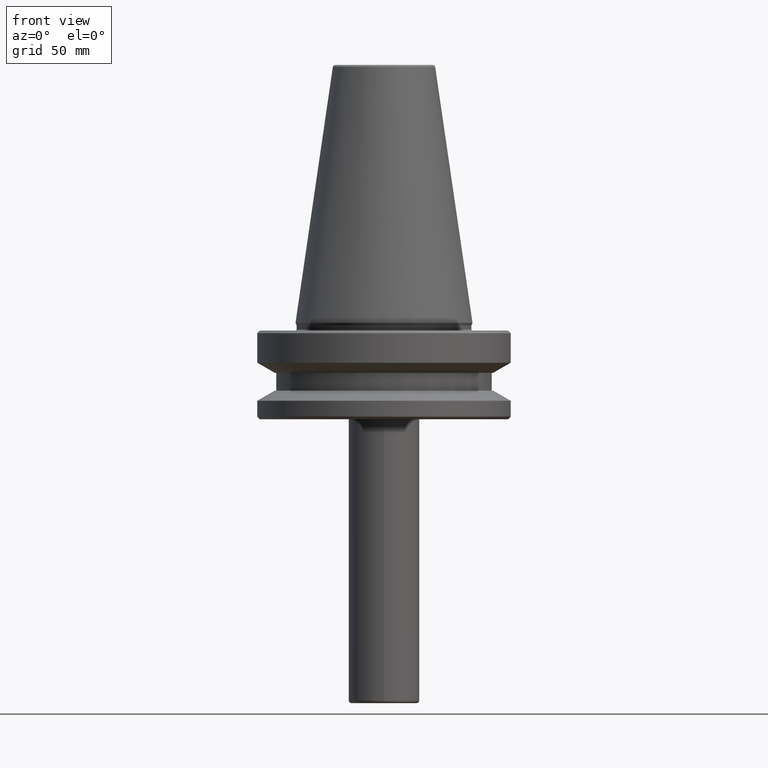
[diagram: clean part render]
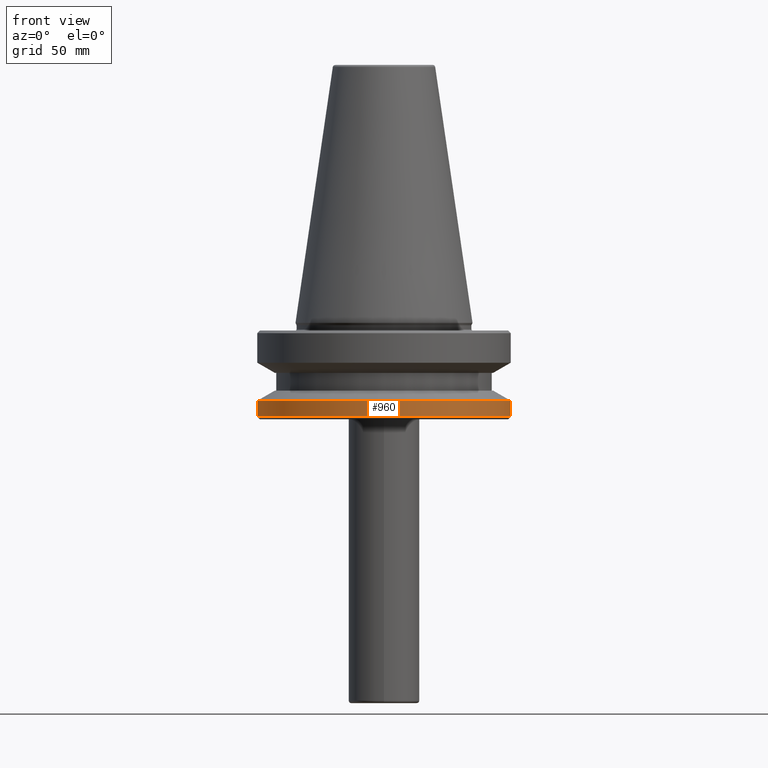
[diagram: same view with one face highlighted and labeled with its STEP entity id]
A machine part, front view. The second image highlights one B-rep face of the part: STEP entity #960.
In plain terms, the highlighted cylindrical surface (partial cylindrical patch) has radius 50 mm, axis along (-0, -0, 1).
Its self-contained STEP definition (entity closure, byte-faithful):
#79 = VERTEX_POINT ( 'NONE', #959 ) ;
#137 = CARTESIAN_POINT ( 'NONE',  ( 0.0000000000000000000, 0.0000000000000000000, -36.83431457505076200 ) ) ;
#167 = AXIS2_PLACEMENT_3D ( 'NONE', #1135, #668, #574 ) ;
#213 = CARTESIAN_POINT ( 'NONE',  ( -50.00000000000000000, 6.123233995736766100E-015, 69.75694866325665100 ) ) ;
#218 = DIRECTION ( 'NONE',  ( 1.000000000000000000, 0.0000000000000000000, 0.0000000000000000000 ) ) ;
#324 = CARTESIAN_POINT ( 'NONE',  ( 50.00000000000000000, 0.0000000000000000000, -36.83431457505076200 ) ) ;
#357 = CARTESIAN_POINT ( 'NONE',  ( 50.00000000000000000, 0.0000000000000000000, 69.75694866325665100 ) ) ;
#393 = ORIENTED_EDGE ( 'NONE', *, *, #810, .F. ) ;
#394 = AXIS2_PLACEMENT_3D ( 'NONE', #1063, #506, #1156 ) ;
#404 = CIRCLE ( 'NONE', #394, 50.00000000000000000 ) ;
#441 = VERTEX_POINT ( 'NONE', #871 ) ;
#497 = CARTESIAN_POINT ( 'NONE',  ( -50.00000000000000000, 6.123233995736766100E-015, -36.83431457505076200 ) ) ;
#506 = DIRECTION ( 'NONE',  ( -0.0000000000000000000, -0.0000000000000000000, 1.000000000000000000 ) ) ;
#513 = CYLINDRICAL_SURFACE ( 'NONE', #167, 50.00000000000000000 ) ;
#574 = DIRECTION ( 'NONE',  ( 1.000000000000000000, 0.0000000000000000000, 0.0000000000000000000 ) ) ;
#650 = EDGE_CURVE ( 'NONE', #984, #1005, #987, .T. ) ;
#668 = DIRECTION ( 'NONE',  ( -0.0000000000000000000, -0.0000000000000000000, 1.000000000000000000 ) ) ;
#686 = FACE_OUTER_BOUND ( 'NONE', #1062, .T. ) ;
#714 = EDGE_CURVE ( 'NONE', #1005, #441, #838, .T. ) ;
#757 = DIRECTION ( 'NONE',  ( -0.0000000000000000000, -0.0000000000000000000, 1.000000000000000000 ) ) ;
#810 = EDGE_CURVE ( 'NONE', #984, #79, #872, .T. ) ;
#815 = AXIS2_PLACEMENT_3D ( 'NONE', #137, #757, #218 ) ;
#837 = VECTOR ( 'NONE', #849, 1000.000000000000000 ) ;
#838 = LINE ( 'NONE', #357, #1155 ) ;
#849 = DIRECTION ( 'NONE',  ( -0.0000000000000000000, -0.0000000000000000000, 1.000000000000000000 ) ) ;
#871 = CARTESIAN_POINT ( 'NONE',  ( 50.00000000000000000, 0.0000000000000000000, -30.69977999677324500 ) ) ;
#872 = LINE ( 'NONE', #213, #837 ) ;
#880 = ORIENTED_EDGE ( 'NONE', *, *, #714, .T. ) ;
#896 = ORIENTED_EDGE ( 'NONE', *, *, #650, .T. ) ;
#910 = ORIENTED_EDGE ( 'NONE', *, *, #1030, .F. ) ;
#959 = CARTESIAN_POINT ( 'NONE',  ( -50.00000000000000000, 6.123233995736766100E-015, -30.69977999677324500 ) ) ;
#960 = ADVANCED_FACE ( 'NONE', ( #686 ), #513, .T. ) ;
#984 = VERTEX_POINT ( 'NONE', #497 ) ;
#987 = CIRCLE ( 'NONE', #815, 50.00000000000000000 ) ;
#1004 = DIRECTION ( 'NONE',  ( -0.0000000000000000000, -0.0000000000000000000, 1.000000000000000000 ) ) ;
#1005 = VERTEX_POINT ( 'NONE', #324 ) ;
#1030 = EDGE_CURVE ( 'NONE', #79, #441, #404, .T. ) ;
#1062 = EDGE_LOOP ( 'NONE', ( #393, #896, #880, #910 ) ) ;
#1063 = CARTESIAN_POINT ( 'NONE',  ( 0.0000000000000000000, 0.0000000000000000000, -30.69977999677324500 ) ) ;
#1135 = CARTESIAN_POINT ( 'NONE',  ( 0.0000000000000000000, 0.0000000000000000000, 69.75694866325665100 ) ) ;
#1155 = VECTOR ( 'NONE', #1004, 1000.000000000000000 ) ;
#1156 = DIRECTION ( 'NONE',  ( 1.000000000000000000, 0.0000000000000000000, 0.0000000000000000000 ) ) ;